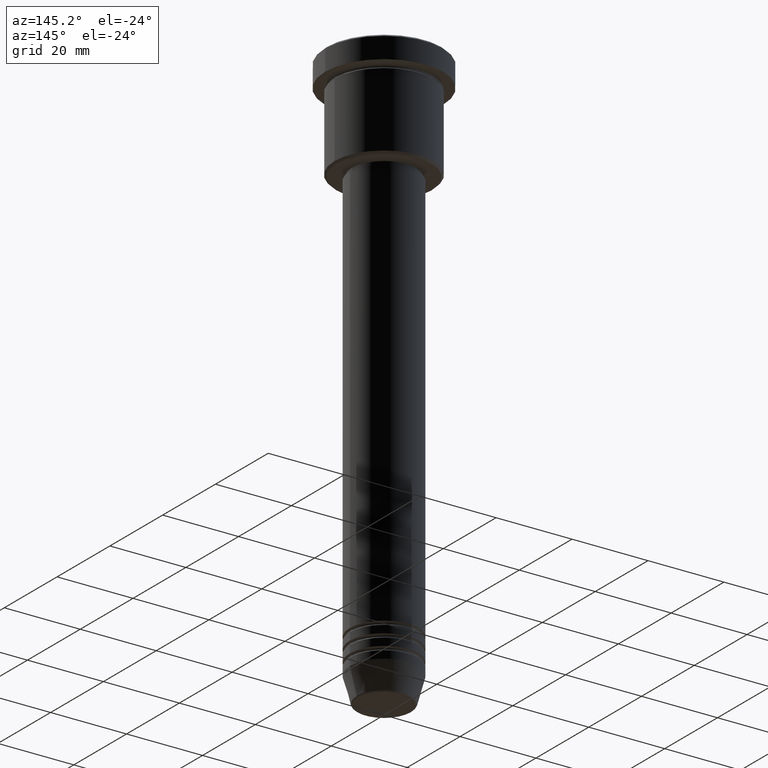
[diagram: clean part render]
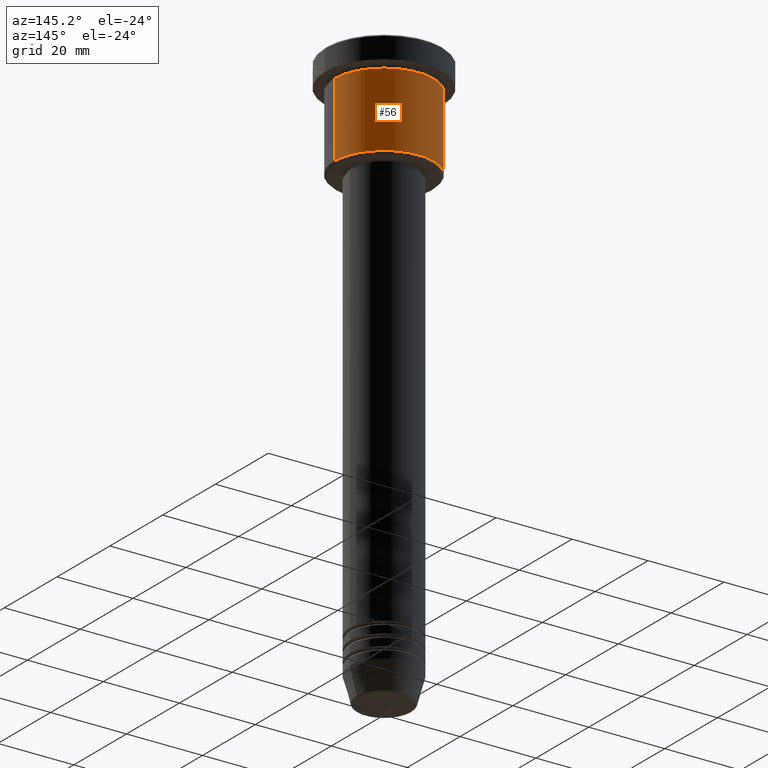
[diagram: same view with one face highlighted and labeled with its STEP entity id]
A machine part, auxiliary view. The second image highlights one B-rep face of the part: STEP entity #56.
In plain terms, the highlighted cylindrical surface (partial cylindrical patch) has radius 13 mm, axis along (-0, -0, 1).
Its self-contained STEP definition (entity closure, byte-faithful):
#19 = LINE ( 'NONE', #375, #1133 ) ;
#40 = DIRECTION ( 'NONE',  ( -0.000000000000000000, -0.000000000000000000, 1.000000000000000000 ) ) ;
#50 = LINE ( 'NONE', #65, #756 ) ;
#56 = ADVANCED_FACE ( 'NONE', ( #1176 ), #1089, .T. ) ;
#65 = CARTESIAN_POINT ( 'NONE',  ( 13.00000000000000000, 0.000000000000000000, 0.000000000000000000 ) ) ;
#110 = CARTESIAN_POINT ( 'NONE',  ( 13.00000000000000000, 0.000000000000000000, -26.49999999999994671 ) ) ;
#131 = DIRECTION ( 'NONE',  ( 1.000000000000000000, 0.000000000000000000, 0.000000000000000000 ) ) ;
#135 = ORIENTED_EDGE ( 'NONE', *, *, #452, .F. ) ;
#137 = AXIS2_PLACEMENT_3D ( 'NONE', #1134, #232, #131 ) ;
#143 = CARTESIAN_POINT ( 'NONE',  ( -13.00000000000000000, 1.592040838891559095E-15, -26.49999999999994671 ) ) ;
#173 = ORIENTED_EDGE ( 'NONE', *, *, #427, .T. ) ;
#232 = DIRECTION ( 'NONE',  ( -0.000000000000000000, -0.000000000000000000, 1.000000000000000000 ) ) ;
#252 = DIRECTION ( 'NONE',  ( -0.000000000000000000, -0.000000000000000000, 1.000000000000000000 ) ) ;
#267 = CARTESIAN_POINT ( 'NONE',  ( 0.000000000000000000, 0.000000000000000000, 0.000000000000000000 ) ) ;
#275 = DIRECTION ( 'NONE',  ( -0.000000000000000000, -0.000000000000000000, 1.000000000000000000 ) ) ;
#307 = VERTEX_POINT ( 'NONE', #110 ) ;
#324 = AXIS2_PLACEMENT_3D ( 'NONE', #785, #40, #1140 ) ;
#370 = VERTEX_POINT ( 'NONE', #463 ) ;
#375 = CARTESIAN_POINT ( 'NONE',  ( -13.00000000000000000, 1.592040838891559095E-15, 0.000000000000000000 ) ) ;
#379 = EDGE_CURVE ( 'NONE', #411, #662, #19, .T. ) ;
#402 = ORIENTED_EDGE ( 'NONE', *, *, #852, .F. ) ;
#411 = VERTEX_POINT ( 'NONE', #143 ) ;
#427 = EDGE_CURVE ( 'NONE', #307, #411, #1061, .T. ) ;
#449 = CARTESIAN_POINT ( 'NONE',  ( -13.00000000000000000, 1.592040838891559095E-15, -6.999999999999995559 ) ) ;
#452 = EDGE_CURVE ( 'NONE', #370, #662, #709, .T. ) ;
#463 = CARTESIAN_POINT ( 'NONE',  ( 13.00000000000000000, 0.000000000000000000, -6.999999999999995559 ) ) ;
#466 = EDGE_LOOP ( 'NONE', ( #173, #942, #135, #402 ) ) ;
#624 = DIRECTION ( 'NONE',  ( 1.000000000000000000, 0.000000000000000000, 0.000000000000000000 ) ) ;
#631 = AXIS2_PLACEMENT_3D ( 'NONE', #267, #275, #624 ) ;
#662 = VERTEX_POINT ( 'NONE', #449 ) ;
#709 = CIRCLE ( 'NONE', #137, 13.00000000000000000 ) ;
#756 = VECTOR ( 'NONE', #252, 1000.000000000000000 ) ;
#785 = CARTESIAN_POINT ( 'NONE',  ( 0.000000000000000000, 0.000000000000000000, -26.49999999999994671 ) ) ;
#852 = EDGE_CURVE ( 'NONE', #307, #370, #50, .T. ) ;
#942 = ORIENTED_EDGE ( 'NONE', *, *, #379, .T. ) ;
#1025 = DIRECTION ( 'NONE',  ( -0.000000000000000000, -0.000000000000000000, 1.000000000000000000 ) ) ;
#1061 = CIRCLE ( 'NONE', #324, 13.00000000000000000 ) ;
#1089 = CYLINDRICAL_SURFACE ( 'NONE', #631, 13.00000000000000000 ) ;
#1133 = VECTOR ( 'NONE', #1025, 1000.000000000000000 ) ;
#1134 = CARTESIAN_POINT ( 'NONE',  ( 0.000000000000000000, 0.000000000000000000, -6.999999999999995559 ) ) ;
#1140 = DIRECTION ( 'NONE',  ( -1.000000000000000000, 0.000000000000000000, 0.000000000000000000 ) ) ;
#1176 = FACE_OUTER_BOUND ( 'NONE', #466, .T. ) ;